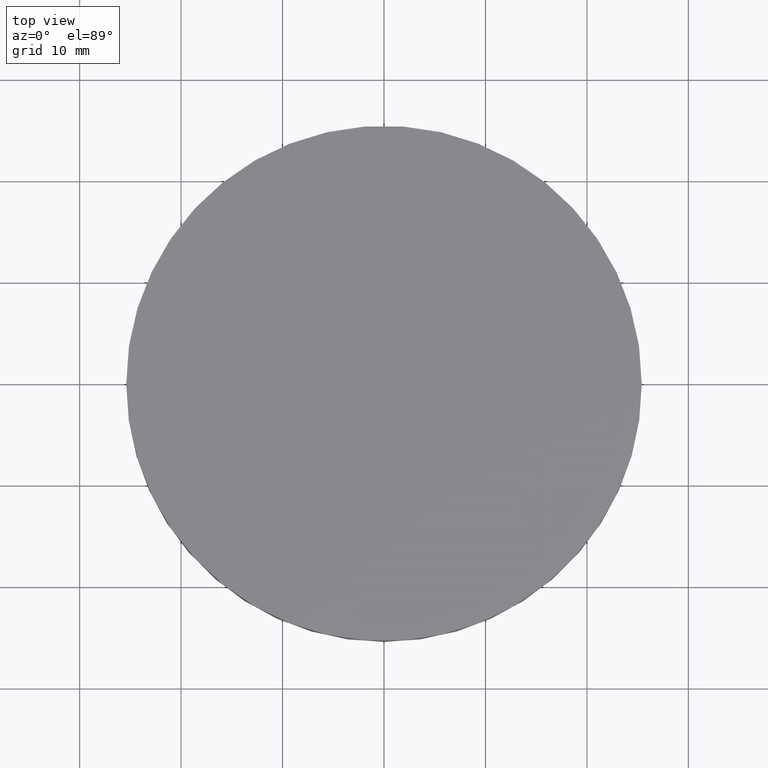
[diagram: clean part render]
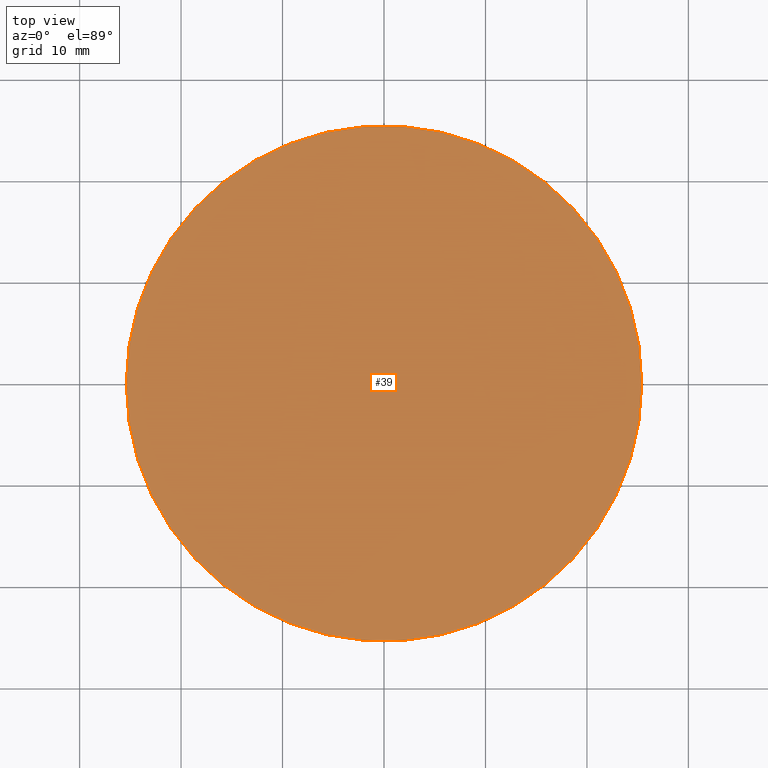
[diagram: same view with one face highlighted and labeled with its STEP entity id]
A machine part, top view. The second image highlights one B-rep face of the part: STEP entity #39.
In plain terms, the highlighted planar face has unit normal (0, 0, 1).
Its self-contained STEP definition (entity closure, byte-faithful):
#2 = AXIS2_PLACEMENT_3D ( 'NONE', #113, #97, #161 ) ;
#7 = CARTESIAN_POINT ( 'NONE',  ( 9.992007221626412800E-016, 4.884981308350691100E-015, 6.000000000000000000 ) ) ;
#30 = EDGE_LOOP ( 'NONE', ( #156, #53 ) ) ;
#37 = VERTEX_POINT ( 'NONE', #160 ) ;
#39 = ADVANCED_FACE ( 'NONE', ( #217 ), #81, .T. ) ;
#41 = CIRCLE ( 'NONE', #148, 25.39999999999999900 ) ;
#42 = EDGE_CURVE ( 'NONE', #37, #133, #119, .T. ) ;
#46 = DIRECTION ( 'NONE',  ( 1.000000000000000000, 0.0000000000000000000, 0.0000000000000000000 ) ) ;
#53 = ORIENTED_EDGE ( 'NONE', *, *, #126, .F. ) ;
#59 = DIRECTION ( 'NONE',  ( -0.0000000000000000000, -0.0000000000000000000, -1.000000000000000000 ) ) ;
#61 = CARTESIAN_POINT ( 'NONE',  ( 9.992007221626412800E-016, 4.884981308350691100E-015, 6.000000000000000000 ) ) ;
#67 = AXIS2_PLACEMENT_3D ( 'NONE', #7, #59, #46 ) ;
#78 = DIRECTION ( 'NONE',  ( -0.0000000000000000000, -0.0000000000000000000, -1.000000000000000000 ) ) ;
#81 = PLANE ( 'NONE',  #2 ) ;
#97 = DIRECTION ( 'NONE',  ( 0.0000000000000000000, 0.0000000000000000000, 1.000000000000000000 ) ) ;
#110 = CARTESIAN_POINT ( 'NONE',  ( -25.39999999999999900, 7.995584178184967200E-015, 6.000000000000000000 ) ) ;
#113 = CARTESIAN_POINT ( 'NONE',  ( 0.0000000000000000000, 52.02000000000000300, 6.000000000000000000 ) ) ;
#119 = CIRCLE ( 'NONE', #67, 25.39999999999999900 ) ;
#126 = EDGE_CURVE ( 'NONE', #133, #37, #41, .T. ) ;
#133 = VERTEX_POINT ( 'NONE', #110 ) ;
#148 = AXIS2_PLACEMENT_3D ( 'NONE', #61, #78, #218 ) ;
#156 = ORIENTED_EDGE ( 'NONE', *, *, #42, .F. ) ;
#160 = CARTESIAN_POINT ( 'NONE',  ( 25.39999999999999900, 4.884981308350691100E-015, 6.000000000000000000 ) ) ;
#161 = DIRECTION ( 'NONE',  ( 1.000000000000000000, 0.0000000000000000000, -0.0000000000000000000 ) ) ;
#217 = FACE_OUTER_BOUND ( 'NONE', #30, .T. ) ;
#218 = DIRECTION ( 'NONE',  ( 1.000000000000000000, 0.0000000000000000000, 0.0000000000000000000 ) ) ;